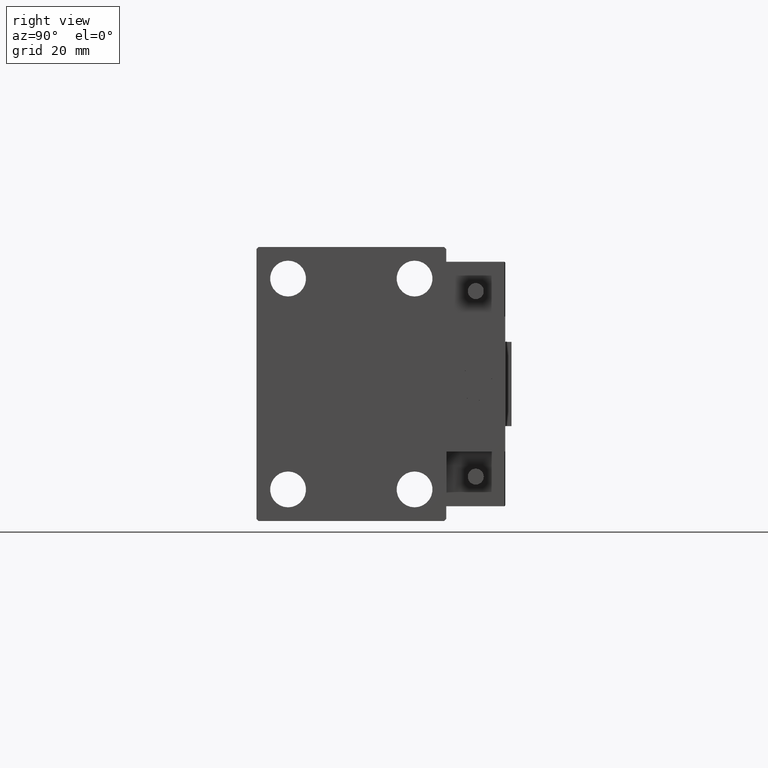
[diagram: clean part render]
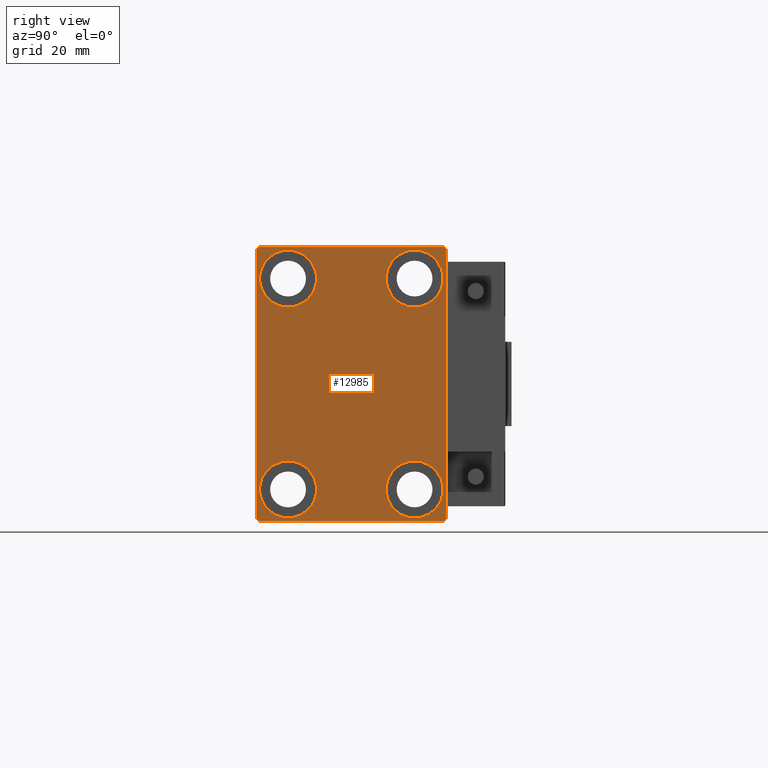
[diagram: same view with one face highlighted and labeled with its STEP entity id]
A machine part, right view. The second image highlights one B-rep face of the part: STEP entity #12985.
In plain terms, the highlighted planar face has unit normal (1, 0, 0).
Its self-contained STEP definition (entity closure, byte-faithful):
#95 = ORIENTED_EDGE ( 'NONE', *, *, #38747, .T. ) ;
#228 = DIRECTION ( 'NONE',  ( 1.000000000000000000, 0.000000000000000000, 0.000000000000000000 ) ) ;
#626 = VERTEX_POINT ( 'NONE', #11549 ) ;
#854 = DIRECTION ( 'NONE',  ( 0.000000000000000000, 0.000000000000000000, 1.000000000000000000 ) ) ;
#899 = EDGE_LOOP ( 'NONE', ( #5336, #44438 ) ) ;
#985 = CARTESIAN_POINT ( 'NONE',  ( 70.00000000000000000, 0.000000000000000000, 0.000000000000000000 ) ) ;
#1301 = AXIS2_PLACEMENT_3D ( 'NONE', #45722, #46743, #30076 ) ;
#1734 = EDGE_CURVE ( 'NONE', #22479, #6119, #15237, .T. ) ;
#2115 = CARTESIAN_POINT ( 'NONE',  ( 70.00000000000000000, -22.50000000000000711, -32.50000000000000711 ) ) ;
#2750 = LINE ( 'NONE', #41024, #46886 ) ;
#2827 = VERTEX_POINT ( 'NONE', #38373 ) ;
#3765 = DIRECTION ( 'NONE',  ( -0.000000000000000000, 0.7071067811865378028, -0.7071067811865573427 ) ) ;
#3775 = DIRECTION ( 'NONE',  ( 0.000000000000000000, -1.000000000000000000, -1.541976423090495387E-16 ) ) ;
#3801 = CARTESIAN_POINT ( 'NONE',  ( 70.00000000000000000, 14.99999999999999645, -31.75000000000000000 ) ) ;
#4213 = CARTESIAN_POINT ( 'NONE',  ( 70.00000000000000000, 15.00000000000000355, 31.75000000000000000 ) ) ;
#4367 = VECTOR ( 'NONE', #3775, 1000.000000000000000 ) ;
#4725 = CARTESIAN_POINT ( 'NONE',  ( 70.00000000000000000, 14.99999999999999645, -25.00000000000000000 ) ) ;
#5051 = CARTESIAN_POINT ( 'NONE',  ( 70.00000000000000000, -15.00000000000000355, -31.75000000000000000 ) ) ;
#5333 = DIRECTION ( 'NONE',  ( -1.000000000000000000, -0.000000000000000000, -0.000000000000000000 ) ) ;
#5336 = ORIENTED_EDGE ( 'NONE', *, *, #1734, .T. ) ;
#5717 = VERTEX_POINT ( 'NONE', #48703 ) ;
#5806 = DIRECTION ( 'NONE',  ( -1.000000000000000000, -0.000000000000000000, -0.000000000000000000 ) ) ;
#6070 = VECTOR ( 'NONE', #41563, 1000.000000000000000 ) ;
#6119 = VERTEX_POINT ( 'NONE', #4213 ) ;
#6385 = VECTOR ( 'NONE', #3765, 1000.000000000000000 ) ;
#6496 = ORIENTED_EDGE ( 'NONE', *, *, #39272, .T. ) ;
#7620 = CARTESIAN_POINT ( 'NONE',  ( 70.00000000000000000, -27.25000000000032330, -27.24999999999957012 ) ) ;
#7792 = CARTESIAN_POINT ( 'NONE',  ( 70.00000000000000000, -15.00000000000000355, -25.00000000000000000 ) ) ;
#7943 = FACE_BOUND ( 'NONE', #16071, .T. ) ;
#8459 = FACE_BOUND ( 'NONE', #12224, .T. ) ;
#8678 = VERTEX_POINT ( 'NONE', #3801 ) ;
#8913 = DIRECTION ( 'NONE',  ( 0.000000000000000000, 0.000000000000000000, 1.000000000000000000 ) ) ;
#8987 = EDGE_CURVE ( 'NONE', #18021, #40417, #45716, .T. ) ;
#9257 = ORIENTED_EDGE ( 'NONE', *, *, #42790, .T. ) ;
#9305 = AXIS2_PLACEMENT_3D ( 'NONE', #33412, #13127, #48538 ) ;
#9457 = EDGE_CURVE ( 'NONE', #36261, #30490, #14579, .T. ) ;
#9796 = CARTESIAN_POINT ( 'NONE',  ( 70.00000000000000000, -21.99999999999999289, 32.49999999999999289 ) ) ;
#9840 = EDGE_CURVE ( 'NONE', #6119, #22479, #42921, .T. ) ;
#9909 = LINE ( 'NONE', #33042, #10883 ) ;
#9956 = AXIS2_PLACEMENT_3D ( 'NONE', #7792, #31168, #11892 ) ;
#10453 = CARTESIAN_POINT ( 'NONE',  ( 70.00000000000000000, 27.25000000000014921, 27.24999999999976907 ) ) ;
#10498 = EDGE_CURVE ( 'NONE', #626, #48014, #38197, .T. ) ;
#10883 = VECTOR ( 'NONE', #29186, 1000.000000000000114 ) ;
#11081 = EDGE_CURVE ( 'NONE', #45466, #29666, #37306, .T. ) ;
#11136 = ORIENTED_EDGE ( 'NONE', *, *, #36723, .T. ) ;
#11159 = VECTOR ( 'NONE', #17797, 1000.000000000000000 ) ;
#11167 = EDGE_LOOP ( 'NONE', ( #9257, #19958 ) ) ;
#11549 = CARTESIAN_POINT ( 'NONE',  ( 70.00000000000000000, 22.49999999999999289, 31.99999999999999289 ) ) ;
#11796 = CIRCLE ( 'NONE', #9305, 6.749999999999999112 ) ;
#11880 = CARTESIAN_POINT ( 'NONE',  ( 70.00000000000000000, 14.99999999999999645, -18.25000000000000355 ) ) ;
#11892 = DIRECTION ( 'NONE',  ( 0.000000000000000000, 0.000000000000000000, 1.000000000000000000 ) ) ;
#12224 = EDGE_LOOP ( 'NONE', ( #18337, #27013 ) ) ;
#12552 = FACE_BOUND ( 'NONE', #11167, .T. ) ;
#12985 = ADVANCED_FACE ( 'NONE', ( #7943, #8459, #27981, #12552, #43639 ), #23629, .T. ) ;
#13127 = DIRECTION ( 'NONE',  ( -1.000000000000000000, -0.000000000000000000, -0.000000000000000000 ) ) ;
#13236 = AXIS2_PLACEMENT_3D ( 'NONE', #4725, #36057, #854 ) ;
#13451 = DIRECTION ( 'NONE',  ( 0.000000000000000000, -1.067522139062650425E-16, 1.000000000000000000 ) ) ;
#14069 = CIRCLE ( 'NONE', #9956, 6.749999999999999112 ) ;
#14579 = CIRCLE ( 'NONE', #33162, 6.749999999999999112 ) ;
#15237 = CIRCLE ( 'NONE', #1301, 6.749999999999999112 ) ;
#16071 = EDGE_LOOP ( 'NONE', ( #95, #21020 ) ) ;
#16819 = CARTESIAN_POINT ( 'NONE',  ( 70.00000000000000000, -14.99999999999999645, 31.75000000000000000 ) ) ;
#17308 = VECTOR ( 'NONE', #13451, 1000.000000000000000 ) ;
#17372 = CARTESIAN_POINT ( 'NONE',  ( 70.00000000000000000, 14.99999999999999645, -25.00000000000000000 ) ) ;
#17445 = CARTESIAN_POINT ( 'NONE',  ( 70.00000000000000000, 15.00000000000000355, 18.25000000000000355 ) ) ;
#17797 = DIRECTION ( 'NONE',  ( 0.000000000000000000, 1.000000000000000000, 0.000000000000000000 ) ) ;
#18021 = VERTEX_POINT ( 'NONE', #37170 ) ;
#18337 = ORIENTED_EDGE ( 'NONE', *, *, #47900, .T. ) ;
#18668 = AXIS2_PLACEMENT_3D ( 'NONE', #21951, #30663, #22720 ) ;
#18734 = LINE ( 'NONE', #22316, #6070 ) ;
#19096 = EDGE_CURVE ( 'NONE', #47022, #45466, #42807, .T. ) ;
#19341 = VECTOR ( 'NONE', #22806, 999.9999999999998863 ) ;
#19958 = ORIENTED_EDGE ( 'NONE', *, *, #8987, .T. ) ;
#20424 = AXIS2_PLACEMENT_3D ( 'NONE', #17372, #5806, #8913 ) ;
#20947 = EDGE_CURVE ( 'NONE', #31521, #8678, #45818, .T. ) ;
#21020 = ORIENTED_EDGE ( 'NONE', *, *, #20947, .T. ) ;
#21951 = CARTESIAN_POINT ( 'NONE',  ( 70.00000000000000000, -15.00000000000000355, -25.00000000000000000 ) ) ;
#22316 = CARTESIAN_POINT ( 'NONE',  ( 70.00000000000000000, -22.50000000000000711, 32.49999999999999289 ) ) ;
#22479 = VERTEX_POINT ( 'NONE', #17445 ) ;
#22720 = DIRECTION ( 'NONE',  ( 0.000000000000000000, 0.000000000000000000, 1.000000000000000000 ) ) ;
#22806 = DIRECTION ( 'NONE',  ( -0.000000000000000000, -0.7071067811865425767, 0.7071067811865525687 ) ) ;
#22886 = CARTESIAN_POINT ( 'NONE',  ( 70.00000000000000000, 21.99999999999999289, 32.50000000000000000 ) ) ;
#23629 = PLANE ( 'NONE',  #36650 ) ;
#25473 = ORIENTED_EDGE ( 'NONE', *, *, #19096, .T. ) ;
#26968 = VERTEX_POINT ( 'NONE', #9796 ) ;
#27013 = ORIENTED_EDGE ( 'NONE', *, *, #9457, .T. ) ;
#27611 = CARTESIAN_POINT ( 'NONE',  ( 70.00000000000000000, -22.00000000000002132, -32.50000000000000711 ) ) ;
#27981 = FACE_BOUND ( 'NONE', #899, .T. ) ;
#28618 = LINE ( 'NONE', #44261, #4367 ) ;
#28712 = DIRECTION ( 'NONE',  ( 0.000000000000000000, 0.000000000000000000, 1.000000000000000000 ) ) ;
#29112 = CARTESIAN_POINT ( 'NONE',  ( 70.00000000000000000, 22.00000000000001421, -32.50000000000000711 ) ) ;
#29186 = DIRECTION ( 'NONE',  ( -0.000000000000000000, 0.7071067811865376918, 0.7071067811865573427 ) ) ;
#29666 = VERTEX_POINT ( 'NONE', #29112 ) ;
#30021 = DIRECTION ( 'NONE',  ( 0.000000000000000000, 0.000000000000000000, 1.000000000000000000 ) ) ;
#30076 = DIRECTION ( 'NONE',  ( 0.000000000000000000, 0.000000000000000000, 1.000000000000000000 ) ) ;
#30490 = VERTEX_POINT ( 'NONE', #47870 ) ;
#30507 = EDGE_CURVE ( 'NONE', #5717, #626, #32485, .T. ) ;
#30663 = DIRECTION ( 'NONE',  ( -1.000000000000000000, -0.000000000000000000, -0.000000000000000000 ) ) ;
#31168 = DIRECTION ( 'NONE',  ( -1.000000000000000000, -0.000000000000000000, -0.000000000000000000 ) ) ;
#31521 = VERTEX_POINT ( 'NONE', #11880 ) ;
#32485 = LINE ( 'NONE', #48612, #17308 ) ;
#33042 = CARTESIAN_POINT ( 'NONE',  ( 70.00000000000000000, 27.25000000000032685, -27.24999999999957012 ) ) ;
#33162 = AXIS2_PLACEMENT_3D ( 'NONE', #37481, #33887, #30021 ) ;
#33412 = CARTESIAN_POINT ( 'NONE',  ( 70.00000000000000000, -14.99999999999999645, 25.00000000000000000 ) ) ;
#33885 = EDGE_CURVE ( 'NONE', #29666, #5717, #9909, .T. ) ;
#33887 = DIRECTION ( 'NONE',  ( -1.000000000000000000, -0.000000000000000000, -0.000000000000000000 ) ) ;
#33967 = ORIENTED_EDGE ( 'NONE', *, *, #10498, .T. ) ;
#34087 = DIRECTION ( 'NONE',  ( 0.000000000000000000, -0.7071067811865474617, -0.7071067811865474617 ) ) ;
#34977 = ORIENTED_EDGE ( 'NONE', *, *, #30507, .T. ) ;
#35186 = ORIENTED_EDGE ( 'NONE', *, *, #11081, .T. ) ;
#36057 = DIRECTION ( 'NONE',  ( -1.000000000000000000, -0.000000000000000000, -0.000000000000000000 ) ) ;
#36261 = VERTEX_POINT ( 'NONE', #16819 ) ;
#36650 = AXIS2_PLACEMENT_3D ( 'NONE', #985, #228, #39278 ) ;
#36723 = EDGE_CURVE ( 'NONE', #2827, #47022, #18734, .T. ) ;
#37170 = CARTESIAN_POINT ( 'NONE',  ( 70.00000000000000000, -15.00000000000000355, -18.25000000000000355 ) ) ;
#37306 = LINE ( 'NONE', #2115, #11159 ) ;
#37481 = CARTESIAN_POINT ( 'NONE',  ( 70.00000000000000000, -14.99999999999999645, 25.00000000000000000 ) ) ;
#38197 = LINE ( 'NONE', #10453, #19341 ) ;
#38373 = CARTESIAN_POINT ( 'NONE',  ( 70.00000000000000000, -22.50000000000000711, 31.99999999999999289 ) ) ;
#38733 = CARTESIAN_POINT ( 'NONE',  ( 70.00000000000000000, -22.50000000000000711, -32.00000000000000711 ) ) ;
#38747 = EDGE_CURVE ( 'NONE', #8678, #31521, #49314, .T. ) ;
#39272 = EDGE_CURVE ( 'NONE', #26968, #2827, #2750, .T. ) ;
#39278 = DIRECTION ( 'NONE',  ( 0.000000000000000000, 0.000000000000000000, -1.000000000000000000 ) ) ;
#40417 = VERTEX_POINT ( 'NONE', #5051 ) ;
#41024 = CARTESIAN_POINT ( 'NONE',  ( 70.00000000000000000, -27.25000000000000000, 27.25000000000000000 ) ) ;
#41563 = DIRECTION ( 'NONE',  ( 0.000000000000000000, 0.000000000000000000, -1.000000000000000000 ) ) ;
#41613 = ORIENTED_EDGE ( 'NONE', *, *, #33885, .T. ) ;
#42009 = EDGE_LOOP ( 'NONE', ( #43455, #6496, #11136, #25473, #35186, #41613, #34977, #33967 ) ) ;
#42790 = EDGE_CURVE ( 'NONE', #40417, #18021, #14069, .T. ) ;
#42807 = LINE ( 'NONE', #7620, #6385 ) ;
#42841 = AXIS2_PLACEMENT_3D ( 'NONE', #48214, #5333, #28712 ) ;
#42921 = CIRCLE ( 'NONE', #42841, 6.749999999999999112 ) ;
#43455 = ORIENTED_EDGE ( 'NONE', *, *, #47379, .T. ) ;
#43639 = FACE_OUTER_BOUND ( 'NONE', #42009, .T. ) ;
#44261 = CARTESIAN_POINT ( 'NONE',  ( 70.00000000000000000, 22.49999999999999289, 32.50000000000000000 ) ) ;
#44438 = ORIENTED_EDGE ( 'NONE', *, *, #9840, .T. ) ;
#45466 = VERTEX_POINT ( 'NONE', #27611 ) ;
#45716 = CIRCLE ( 'NONE', #18668, 6.749999999999999112 ) ;
#45722 = CARTESIAN_POINT ( 'NONE',  ( 70.00000000000000000, 15.00000000000000355, 25.00000000000000000 ) ) ;
#45818 = CIRCLE ( 'NONE', #20424, 6.749999999999999112 ) ;
#46743 = DIRECTION ( 'NONE',  ( -1.000000000000000000, -0.000000000000000000, -0.000000000000000000 ) ) ;
#46886 = VECTOR ( 'NONE', #34087, 1000.000000000000114 ) ;
#47022 = VERTEX_POINT ( 'NONE', #38733 ) ;
#47379 = EDGE_CURVE ( 'NONE', #48014, #26968, #28618, .T. ) ;
#47870 = CARTESIAN_POINT ( 'NONE',  ( 70.00000000000000000, -14.99999999999999645, 18.25000000000000355 ) ) ;
#47900 = EDGE_CURVE ( 'NONE', #30490, #36261, #11796, .T. ) ;
#48014 = VERTEX_POINT ( 'NONE', #22886 ) ;
#48214 = CARTESIAN_POINT ( 'NONE',  ( 70.00000000000000000, 15.00000000000000355, 25.00000000000000000 ) ) ;
#48538 = DIRECTION ( 'NONE',  ( 0.000000000000000000, 0.000000000000000000, 1.000000000000000000 ) ) ;
#48612 = CARTESIAN_POINT ( 'NONE',  ( 70.00000000000000000, 22.50000000000000000, -32.50000000000000711 ) ) ;
#48703 = CARTESIAN_POINT ( 'NONE',  ( 70.00000000000000000, 22.50000000000000000, -32.00000000000002132 ) ) ;
#49314 = CIRCLE ( 'NONE', #13236, 6.749999999999999112 ) ;